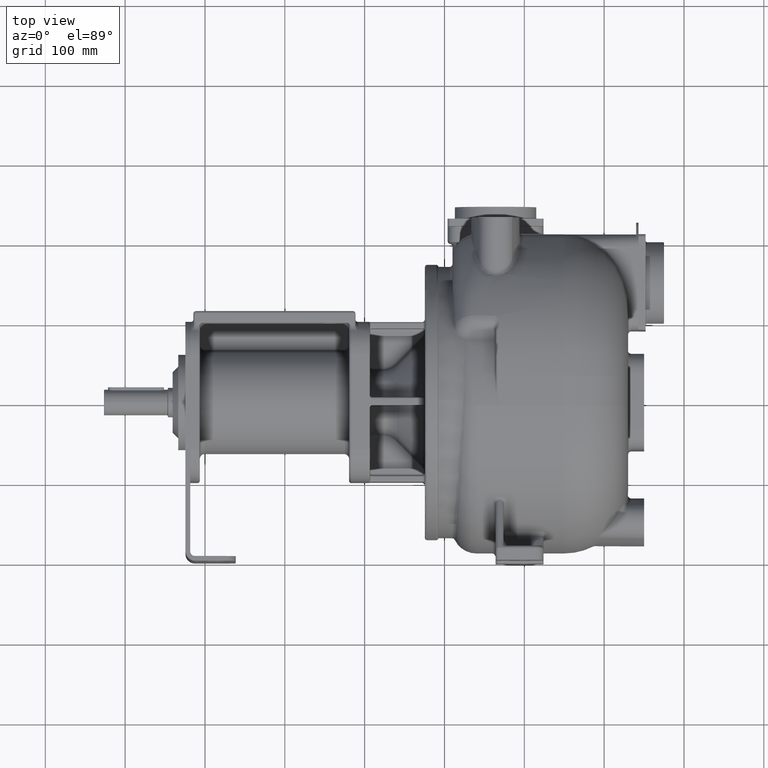
[diagram: clean part render]
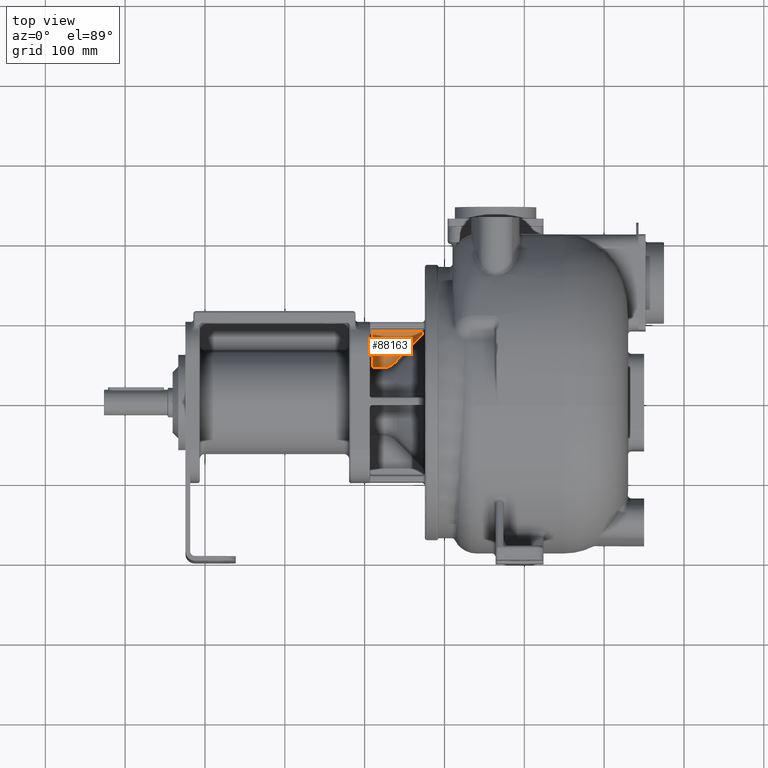
[diagram: same view with one face highlighted and labeled with its STEP entity id]
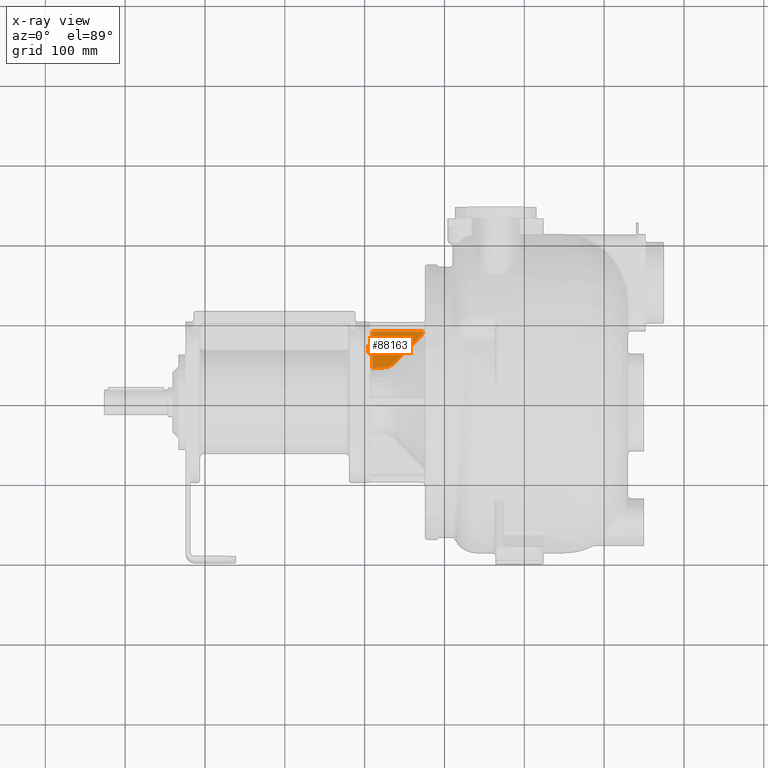
[diagram: x-ray of the same camera — body ghosted, the highlighted face saturated]
A machine part, top view. The second image highlights one B-rep face of the part: STEP entity #88163.
The next image is the same camera in x-ray: the body ghosted, the highlighted face saturated — about 0% of this face is hidden behind the body in this view.
In plain terms, the highlighted planar face has unit normal (0, 0, 1).
Its self-contained STEP definition (entity closure, byte-faithful):
#29629=DIRECTION('',(0.E0,-1.E0,1.942568140263E-10));
#29630=VECTOR('',#29629,9.172528907366E0);
#29631=CARTESIAN_POINT('',(-1.955E2,2.708166663789E2,1.000000710442E1));
#29632=LINE('',#29631,#29630);
#32464=CARTESIAN_POINT('',(-1.905E2,2.758946638440E2,1.000000372372E1));
#32465=CARTESIAN_POINT('',(-1.904999995396E2,2.758226602936E2,
1.000000356183E1));
#32466=CARTESIAN_POINT('',(-1.905030271808E2,2.756786217992E2,
9.999998346948E0));
#32467=CARTESIAN_POINT('',(-1.905166631118E2,2.754622158651E2,
1.000000044293E1));
#32468=CARTESIAN_POINT('',(-1.905394666655E2,2.752462237698E2,
9.999999881316E0));
#32469=CARTESIAN_POINT('',(-1.905713996205E2,2.750311145598E2,
1.000000003180E1));
#32470=CARTESIAN_POINT('',(-1.906124175422E2,2.748174372304E2,
9.999999991479E0));
#32471=CARTESIAN_POINT('',(-1.906624379659E2,2.746057133156E2,
1.000000000228E1));
#32472=CARTESIAN_POINT('',(-1.907213084479E2,2.743964803736E2,
9.999999999388E0));
#32473=CARTESIAN_POINT('',(-1.907888732584E2,2.741901955809E2,
1.000000000016E1));
#32474=CARTESIAN_POINT('',(-1.908650243962E2,2.739871689097E2,
9.999999999956E0));
#32475=CARTESIAN_POINT('',(-1.909496137948E2,2.737877230395E2,
1.000000000001E1));
#32476=CARTESIAN_POINT('',(-1.910424897560E2,2.735921630020E2,
9.999999999997E0));
#32477=CARTESIAN_POINT('',(-1.911434711852E2,2.734008757933E2,1.E1));
#32478=CARTESIAN_POINT('',(-1.912523507550E2,2.732142410651E2,1.E1));
#32479=CARTESIAN_POINT('',(-1.913688779065E2,2.730326188770E2,1.E1));
#32480=CARTESIAN_POINT('',(-1.914928156448E2,2.728563419523E2,1.E1));
#32481=CARTESIAN_POINT('',(-1.916239376171E2,2.726857233609E2,1.E1));
#32482=CARTESIAN_POINT('',(-1.917619765340E2,2.725210526408E2,1.E1));
#32483=CARTESIAN_POINT('',(-1.919066612420E2,2.723626099845E2,1.E1));
#32484=CARTESIAN_POINT('',(-1.920577190622E2,2.722106827364E2,1.E1));
#32485=CARTESIAN_POINT('',(-1.922148542640E2,2.720655351164E2,1.E1));
#32486=CARTESIAN_POINT('',(-1.923777484084E2,2.719274088593E2,1.E1));
#32487=CARTESIAN_POINT('',(-1.925461067287E2,2.717965310880E2,1.E1));
#32488=CARTESIAN_POINT('',(-1.927196327786E2,2.716731208889E2,1.E1));
#32489=CARTESIAN_POINT('',(-1.928980049372E2,2.715573603381E2,1.E1));
#32490=CARTESIAN_POINT('',(-1.930808913153E2,2.714494401131E2,1.E1));
#32491=CARTESIAN_POINT('',(-1.932679394195E2,2.713495633691E2,
9.999999999994E0));
#32492=CARTESIAN_POINT('',(-1.934587776142E2,2.712578919456E2,
1.000000000002E1));
#32493=CARTESIAN_POINT('',(-1.936530290731E2,2.711745631447E2,
9.999999999915E0));
#32494=CARTESIAN_POINT('',(-1.938504351802E2,2.710996739279E2,
1.000000000032E1));
#32495=CARTESIAN_POINT('',(-1.940507249019E2,2.710333243857E2,
9.999999998822E0));
#32496=CARTESIAN_POINT('',(-1.942536459273E2,2.709755807131E2,
1.000000000440E1));
#32497=CARTESIAN_POINT('',(-1.944587853355E2,2.709265695143E2,
9.999999983590E0));
#32498=CARTESIAN_POINT('',(-1.946656315425E2,2.708864217107E2,
1.000000006124E1));
#32499=CARTESIAN_POINT('',(-1.948736928760E2,2.708551976559E2,
9.999999771435E0));
#32500=CARTESIAN_POINT('',(-1.950824521819E2,2.708329226610E2,
1.000000085301E1));
#32501=CARTESIAN_POINT('',(-1.952914703505E2,2.708196135040E2,
9.999996816506E0));
#32502=CARTESIAN_POINT('',(-1.954305140558E2,2.708166660245E2,
1.000000685948E1));
#32503=CARTESIAN_POINT('',(-1.955E2,2.708166663789E2,1.000000710442E1));
#32505=DIRECTION('',(-1.075681517031E-12,-1.E0,2.841373870683E-7));
#32506=VECTOR('',#32505,1.310533615599E1);
#32507=CARTESIAN_POINT('',(-1.905E2,2.89E2,1.E1));
#32508=LINE('',#32507,#32506);
#32509=DIRECTION('',(-1.E0,0.E0,0.E0));
#32510=VECTOR('',#32509,6.3E1);
#32511=CARTESIAN_POINT('',(-1.275E2,2.89E2,1.E1));
#32512=LINE('',#32511,#32510);
#32513=DIRECTION('',(0.E0,1.E0,-2.382242948502E-13));
#32514=VECTOR('',#32513,9.991920287948E-1);
#32515=CARTESIAN_POINT('',(-1.275E2,2.880008079712E2,1.E1));
#32516=LINE('',#32515,#32514);
#32517=CARTESIAN_POINT('',(-1.295502525317E2,2.829941219311E2,
9.999999999871E0));
#32518=CARTESIAN_POINT('',(-1.294859925801E2,2.830591687059E2,
9.999999999871E0));
#32519=CARTESIAN_POINT('',(-1.293599386648E2,2.831918296769E2,
1.000000000006E1));
#32520=CARTESIAN_POINT('',(-1.291780984419E2,2.833987430531E2,
9.999999999984E0));
#32521=CARTESIAN_POINT('',(-1.290041009070E2,2.836130479136E2,1.E1));
#32522=CARTESIAN_POINT('',(-1.288383062486E2,2.838343870915E2,
9.999999999999E0));
#32523=CARTESIAN_POINT('',(-1.286810641636E2,2.840623318032E2,1.E1));
#32524=CARTESIAN_POINT('',(-1.285327135853E2,2.842964460847E2,1.E1));
#32525=CARTESIAN_POINT('',(-1.283935342561E2,2.845363056429E2,1.E1));
#32526=CARTESIAN_POINT('',(-1.282637082031E2,2.847815848979E2,1.E1));
#32527=CARTESIAN_POINT('',(-1.281434415490E2,2.850319575353E2,1.E1));
#32528=CARTESIAN_POINT('',(-1.280329378460E2,2.852870485066E2,1.E1));
#32529=CARTESIAN_POINT('',(-1.279323930839E2,2.855464077659E2,1.E1));
#32530=CARTESIAN_POINT('',(-1.278420040951E2,2.858095843739E2,1.E1));
#32531=CARTESIAN_POINT('',(-1.277619133348E2,2.860761705015E2,1.E1));
#32532=CARTESIAN_POINT('',(-1.276922250189E2,2.863457889581E2,1.E1));
#32533=CARTESIAN_POINT('',(-1.276330598358E2,2.866180767696E2,1.E1));
#32534=CARTESIAN_POINT('',(-1.275845390220E2,2.868925341053E2,1.E1));
#32535=CARTESIAN_POINT('',(-1.275467486332E2,2.871686074355E2,1.E1));
#32536=CARTESIAN_POINT('',(-1.275197612252E2,2.874457375432E2,1.E1));
#32537=CARTESIAN_POINT('',(-1.275035928998E2,2.877234102219E2,1.E1));
#32538=CARTESIAN_POINT('',(-1.275000022816E2,2.879083422977E2,1.E1));
#32539=CARTESIAN_POINT('',(-1.275E2,2.880008079712E2,1.E1));
#32541=CARTESIAN_POINT('',(-1.616126983722E2,2.502905842069E2,
9.999999999239E0));
#32542=CARTESIAN_POINT('',(-1.587167874471E2,2.532816865019E2,
9.999999925695E0));
#32543=CARTESIAN_POINT('',(-1.524798060487E2,2.596900732222E2,
1.000000003317E1));
#32544=CARTESIAN_POINT('',(-1.418541726116E2,2.705240539342E2,
9.999999995365E0));
#32545=CARTESIAN_POINT('',(-1.338053114116E2,2.786871801047E2,
9.999999988702E0));
#32546=CARTESIAN_POINT('',(-1.295502525317E2,2.829941219311E2,
9.999999999871E0));
#32548=CARTESIAN_POINT('',(-1.771690475583E2,2.436033255612E2,1.E1));
#32549=CARTESIAN_POINT('',(-1.769597411366E2,2.436033278719E2,1.E1));
#32550=CARTESIAN_POINT('',(-1.765409749929E2,2.436095683433E2,1.E1));
#32551=CARTESIAN_POINT('',(-1.759120581962E2,2.436376935271E2,1.E1));
#32552=CARTESIAN_POINT('',(-1.752832968583E2,2.436846508106E2,1.E1));
#32553=CARTESIAN_POINT('',(-1.746552888078E2,2.437504885993E2,1.E1));
#32554=CARTESIAN_POINT('',(-1.740286724101E2,2.438351771413E2,1.E1));
#32555=CARTESIAN_POINT('',(-1.734040682929E2,2.439386840179E2,1.E1));
#32556=CARTESIAN_POINT('',(-1.727821096197E2,2.440609566793E2,1.E1));
#32557=CARTESIAN_POINT('',(-1.721631605338E2,2.442019372470E2,1.E1));
#32558=CARTESIAN_POINT('',(-1.715475904965E2,2.443615964558E2,1.E1));
#32559=CARTESIAN_POINT('',(-1.709357776276E2,2.445399257952E2,1.E1));
#32560=CARTESIAN_POINT('',(-1.703282299969E2,2.447368299295E2,1.E1));
#32561=CARTESIAN_POINT('',(-1.697254688085E2,2.449522136556E2,1.E1));
#32562=CARTESIAN_POINT('',(-1.691280240849E2,2.451859840172E2,1.E1));
#32563=CARTESIAN_POINT('',(-1.685363696198E2,2.454380146054E2,1.E1));
#32564=CARTESIAN_POINT('',(-1.679509877200E2,2.457081823676E2,1.E1));
#32565=CARTESIAN_POINT('',(-1.673723717623E2,2.459963728307E2,1.E1));
#32566=CARTESIAN_POINT('',(-1.668010679935E2,2.463023916798E2,1.E1));
#32567=CARTESIAN_POINT('',(-1.662376289929E2,2.466260327458E2,1.E1));
#32568=CARTESIAN_POINT('',(-1.656826170713E2,2.469670866575E2,1.E1));
#32569=CARTESIAN_POINT('',(-1.651365261178E2,2.473253269761E2,1.E1));
#32570=CARTESIAN_POINT('',(-1.645998539271E2,2.477005206154E2,1.E1));
#32571=CARTESIAN_POINT('',(-1.640731089659E2,2.480924399090E2,1.E1));
#32572=CARTESIAN_POINT('',(-1.635569351629E2,2.485006992081E2,
9.999999999993E0));
#32573=CARTESIAN_POINT('',(-1.630519606011E2,2.489248846091E2,
1.000000000003E1));
#32574=CARTESIAN_POINT('',(-1.625588247627E2,2.493645467739E2,
9.999999999905E0));
#32575=CARTESIAN_POINT('',(-1.620780781783E2,2.498192302421E2,
1.000000000035E1));
#32576=CARTESIAN_POINT('',(-1.617663834758E2,2.501318502001E2,
9.999999999239E0));
#32577=CARTESIAN_POINT('',(-1.616126983722E2,2.502905842069E2,
9.999999999239E0));
#32579=DIRECTION('',(1.E0,0.E0,-1.368539052770E-14));
#32580=VECTOR('',#32579,1.233095244169E1);
#32581=CARTESIAN_POINT('',(-1.895E2,2.436033255612E2,1.E1));
#32582=LINE('',#32581,#32580);
#32583=CARTESIAN_POINT('',(-1.905E2,2.446458284725E2,1.E1));
#32584=CARTESIAN_POINT('',(-1.904999988645E2,2.446235346091E2,1.E1));
#32585=CARTESIAN_POINT('',(-1.904986253719E2,2.445790021835E2,1.E1));
#32586=CARTESIAN_POINT('',(-1.904924362019E2,2.445121923305E2,1.E1));
#32587=CARTESIAN_POINT('',(-1.904821144466E2,2.444459026209E2,1.E1));
#32588=CARTESIAN_POINT('',(-1.904677246531E2,2.443804466622E2,1.E1));
#32589=CARTESIAN_POINT('',(-1.904493495006E2,2.443161981818E2,1.E1));
#32590=CARTESIAN_POINT('',(-1.904271116439E2,2.442534447274E2,1.E1));
#32591=CARTESIAN_POINT('',(-1.904011148970E2,2.441924261723E2,1.E1));
#32592=CARTESIAN_POINT('',(-1.903714946775E2,2.441333883641E2,1.E1));
#32593=CARTESIAN_POINT('',(-1.903384159234E2,2.440765866547E2,1.E1));
#32594=CARTESIAN_POINT('',(-1.903020500635E2,2.440222591963E2,1.E1));
#32595=CARTESIAN_POINT('',(-1.902625867660E2,2.439705994995E2,1.E1));
#32596=CARTESIAN_POINT('',(-1.902202060215E2,2.439218005033E2,1.E1));
#32597=CARTESIAN_POINT('',(-1.901751164447E2,2.438760258874E2,1.E1));
#32598=CARTESIAN_POINT('',(-1.901275237782E2,2.438334358335E2,1.E1));
#32599=CARTESIAN_POINT('',(-1.900776363837E2,2.437941623567E2,1.E1));
#32600=CARTESIAN_POINT('',(-1.900256624891E2,2.437583128801E2,1.E1));
#32601=CARTESIAN_POINT('',(-1.899718084202E2,2.437260006578E2,1.E1));
#32602=CARTESIAN_POINT('',(-1.899163153242E2,2.436973145612E2,1.E1));
#32603=CARTESIAN_POINT('',(-1.898594123133E2,2.436723428968E2,1.E1));
#32604=CARTESIAN_POINT('',(-1.898012762629E2,2.436511192808E2,1.E1));
#32605=CARTESIAN_POINT('',(-1.897420575185E2,2.436336778448E2,1.E1));
#32606=CARTESIAN_POINT('',(-1.896820051064E2,2.436200897943E2,1.E1));
#32607=CARTESIAN_POINT('',(-1.896214396381E2,2.436103909424E2,1.E1));
#32608=CARTESIAN_POINT('',(-1.895606239455E2,2.436046047331E2,1.E1));
#32609=CARTESIAN_POINT('',(-1.895202035398E2,2.436033267313E2,1.E1));
#32610=CARTESIAN_POINT('',(-1.895E2,2.436033255612E2,1.E1));
#32612=DIRECTION('',(9.666513553010E-13,-1.E0,-2.698129519529E-7));
#32613=VECTOR('',#32612,1.187850257170E1);
#32614=CARTESIAN_POINT('',(-1.905E2,2.565243310442E2,1.000000320497E1));
#32615=LINE('',#32614,#32613);
#32616=CARTESIAN_POINT('',(-1.955E2,2.616441374716E2,1.000000710621E1));
#32617=CARTESIAN_POINT('',(-1.954307263775E2,2.616441383010E2,
1.000000661811E1));
#32618=CARTESIAN_POINT('',(-1.952921036430E2,2.616411921102E2,
9.999996928525E0));
#32619=CARTESIAN_POINT('',(-1.950837082055E2,2.616278968963E2,
1.000000082300E1));
#32620=CARTESIAN_POINT('',(-1.948755560295E2,2.616056339605E2,
9.999999779478E0));
#32621=CARTESIAN_POINT('',(-1.946680828230E2,2.615744318655E2,
1.000000005909E1));
#32622=CARTESIAN_POINT('',(-1.944618038435E2,2.615343045039E2,
9.999999984167E0));
#32623=CARTESIAN_POINT('',(-1.942572108267E2,2.614853053719E2,
1.000000000424E1));
#32624=CARTESIAN_POINT('',(-1.940548101549E2,2.614275764233E2,
9.999999998863E0));
#32625=CARTESIAN_POINT('',(-1.938550121001E2,2.613612389952E2,
1.000000000030E1));
#32626=CARTESIAN_POINT('',(-1.936580705732E2,2.612863414713E2,
9.999999999918E0));
#32627=CARTESIAN_POINT('',(-1.934642492523E2,2.612029904071E2,
1.000000000002E1));
#32628=CARTESIAN_POINT('',(-1.932738013682E2,2.611112824232E2,
9.999999999994E0));
#32629=CARTESIAN_POINT('',(-1.930871012709E2,2.610113384502E2,1.E1));
#32630=CARTESIAN_POINT('',(-1.929045150388E2,2.609033117162E2,1.E1));
#32631=CARTESIAN_POINT('',(-1.927263839989E2,2.607874047459E2,1.E1));
#32632=CARTESIAN_POINT('',(-1.925530374425E2,2.606637951874E2,1.E1));
#32633=CARTESIAN_POINT('',(-1.923847999284E2,2.605326477059E2,1.E1));
#32634=CARTESIAN_POINT('',(-1.922219586833E2,2.603941782366E2,1.E1));
#32635=CARTESIAN_POINT('',(-1.920648055213E2,2.602486027135E2,1.E1));
#32636=CARTESIAN_POINT('',(-1.919136626025E2,2.600961430821E2,1.E1));
#32637=CARTESIAN_POINT('',(-1.917688216896E2,2.599370516843E2,1.E1));
#32638=CARTESIAN_POINT('',(-1.916305517567E2,2.597716031586E2,1.E1));
#32639=CARTESIAN_POINT('',(-1.914991312847E2,2.596000615852E2,1.E1));
#32640=CARTESIAN_POINT('',(-1.913748348426E2,2.594227029796E2,1.E1));
#32641=CARTESIAN_POINT('',(-1.912578891634E2,2.592398301829E2,1.E1));
#32642=CARTESIAN_POINT('',(-1.911485392398E2,2.590517621939E2,1.E1));
#32643=CARTESIAN_POINT('',(-1.910470488038E2,2.588588454394E2,
9.999999999997E0));
#32644=CARTESIAN_POINT('',(-1.909536302141E2,2.586614484116E2,
1.000000000001E1));
#32645=CARTESIAN_POINT('',(-1.908684754316E2,2.584599467648E2,
9.999999999960E0));
#32646=CARTESIAN_POINT('',(-1.907917557090E2,2.582546443022E2,
1.000000000015E1));
#32647=CARTESIAN_POINT('',(-1.907236331382E2,2.580458648872E2,
9.999999999448E0));
#32648=CARTESIAN_POINT('',(-1.906642293242E2,2.578339185412E2,
1.000000000206E1));
#32649=CARTESIAN_POINT('',(-1.906137167176E2,2.576192642980E2,
9.999999992318E0));
#32650=CARTESIAN_POINT('',(-1.905722637424E2,2.574024462363E2,
1.000000002867E1));
#32651=CARTESIAN_POINT('',(-1.905399660461E2,2.571839903623E2,
9.999999892997E0));
#32652=CARTESIAN_POINT('',(-1.905168842909E2,2.569644529252E2,
1.000000039934E1));
#32653=CARTESIAN_POINT('',(-1.905030705850E2,2.567443116332E2,
9.999998509636E0));
#32654=CARTESIAN_POINT('',(-1.904999998180E2,2.565976673222E2,
1.000000321129E1));
#32655=CARTESIAN_POINT('',(-1.905E2,2.565243310442E2,1.000000320497E1));
#41378=CARTESIAN_POINT('',(-1.955E2,2.708166663789E2,1.000000710442E1));
#41379=CARTESIAN_POINT('',(-1.955E2,2.616441374716E2,1.000000710621E1));
#41380=VERTEX_POINT('',#41378);
#41381=VERTEX_POINT('',#41379);
#41487=CARTESIAN_POINT('',(-1.905E2,2.565243310442E2,1.000000320497E1));
#41488=CARTESIAN_POINT('',(-1.905E2,2.446458284725E2,1.E1));
#41489=VERTEX_POINT('',#41487);
#41490=VERTEX_POINT('',#41488);
#41496=CARTESIAN_POINT('',(-1.895E2,2.436033255612E2,1.E1));
#41497=CARTESIAN_POINT('',(-1.771690475583E2,2.436033255612E2,1.E1));
#41498=VERTEX_POINT('',#41496);
#41499=VERTEX_POINT('',#41497);
#41501=VERTEX_POINT('',#32577);
#41503=VERTEX_POINT('',#32546);
#41505=VERTEX_POINT('',#32539);
#41510=CARTESIAN_POINT('',(-1.275E2,2.89E2,1.E1));
#41511=CARTESIAN_POINT('',(-1.905E2,2.89E2,1.E1));
#41512=VERTEX_POINT('',#41510);
#41513=VERTEX_POINT('',#41511);
#41516=CARTESIAN_POINT('',(-1.905E2,2.758946638440E2,1.000000372372E1));
#41517=VERTEX_POINT('',#41516);
#88136=CARTESIAN_POINT('',(-1.955E2,2.92E2,1.E1));
#88137=DIRECTION('',(0.E0,0.E0,1.E0));
#88138=DIRECTION('',(0.E0,-1.E0,0.E0));
#88139=AXIS2_PLACEMENT_3D('',#88136,#88137,#88138);
#88140=PLANE('',#88139);
#88141=ORIENTED_EDGE('',*,*,#84568,.F.);
#88143=ORIENTED_EDGE('',*,*,#88142,.F.);
#88145=ORIENTED_EDGE('',*,*,#88144,.F.);
#88146=ORIENTED_EDGE('',*,*,#88129,.F.);
#88147=ORIENTED_EDGE('',*,*,#77161,.F.);
#88148=ORIENTED_EDGE('',*,*,#77213,.F.);
#88150=ORIENTED_EDGE('',*,*,#88149,.F.);
#88152=ORIENTED_EDGE('',*,*,#88151,.F.);
#88154=ORIENTED_EDGE('',*,*,#88153,.F.);
#88156=ORIENTED_EDGE('',*,*,#88155,.F.);
#88158=ORIENTED_EDGE('',*,*,#88157,.F.);
#88160=ORIENTED_EDGE('',*,*,#88159,.F.);
#88161=EDGE_LOOP('',(#88141,#88143,#88145,#88146,#88147,#88148,#88150,#88152,
#88154,#88156,#88158,#88160));
#88162=FACE_OUTER_BOUND('',#88161,.F.);
#88163=ADVANCED_FACE('',(#88162),#88140,.T.);
#32504=B_SPLINE_CURVE_WITH_KNOTS('',3,(#32464,#32465,#32466,#32467,#32468,
#32469,#32470,#32471,#32472,#32473,#32474,#32475,#32476,#32477,#32478,#32479,
#32480,#32481,#32482,#32483,#32484,#32485,#32486,#32487,#32488,#32489,#32490,
#32491,#32492,#32493,#32494,#32495,#32496,#32497,#32498,#32499,#32500,#32501,
#32502,#32503),.UNSPECIFIED.,.F.,.F.,(4,1,1,1,1,1,1,1,1,1,1,1,1,1,1,1,1,1,1,1,1,
1,1,1,1,1,1,1,1,1,1,1,1,1,1,1,1,4),(0.E0,2.702702702703E-2,5.405405405405E-2,
8.108108108108E-2,1.081081081081E-1,1.351351351351E-1,1.621621621622E-1,
1.891891891892E-1,2.162162162162E-1,2.432432432432E-1,2.702702702703E-1,
2.972972972973E-1,3.243243243243E-1,3.513513513514E-1,3.783783783784E-1,
4.054054054054E-1,4.324324324324E-1,4.594594594595E-1,4.864864864865E-1,
5.135135135135E-1,5.405405405405E-1,5.675675675676E-1,5.945945945946E-1,
6.216216216216E-1,6.486486486486E-1,6.756756756757E-1,7.027027027027E-1,
7.297297297297E-1,7.567567567568E-1,7.837837837838E-1,8.108108108108E-1,
8.378378378378E-1,8.648648648649E-1,8.918918918919E-1,9.189189189189E-1,
9.459459459459E-1,9.729729729730E-1,1.E0),.UNSPECIFIED.);
#32540=B_SPLINE_CURVE_WITH_KNOTS('',3,(#32517,#32518,#32519,#32520,#32521,
#32522,#32523,#32524,#32525,#32526,#32527,#32528,#32529,#32530,#32531,#32532,
#32533,#32534,#32535,#32536,#32537,#32538,#32539),.UNSPECIFIED.,.F.,.F.,(4,1,1,
1,1,1,1,1,1,1,1,1,1,1,1,1,1,1,1,1,4),(0.E0,5.E-2,1.E-1,1.5E-1,2.E-1,2.5E-1,
3.E-1,3.5E-1,4.E-1,4.5E-1,5.E-1,5.5E-1,6.E-1,6.5E-1,7.E-1,7.5E-1,8.E-1,8.5E-1,
9.E-1,9.5E-1,1.E0),.UNSPECIFIED.);
#32547=B_SPLINE_CURVE_WITH_KNOTS('',3,(#32541,#32542,#32543,#32544,#32545,
#32546),.UNSPECIFIED.,.F.,.F.,(4,1,1,4),(0.E0,3.333333333333E-1,
6.666666666667E-1,1.E0),.UNSPECIFIED.);
#32578=B_SPLINE_CURVE_WITH_KNOTS('',3,(#32548,#32549,#32550,#32551,#32552,
#32553,#32554,#32555,#32556,#32557,#32558,#32559,#32560,#32561,#32562,#32563,
#32564,#32565,#32566,#32567,#32568,#32569,#32570,#32571,#32572,#32573,#32574,
#32575,#32576,#32577),.UNSPECIFIED.,.F.,.F.,(4,1,1,1,1,1,1,1,1,1,1,1,1,1,1,1,1,
1,1,1,1,1,1,1,1,1,1,4),(0.E0,3.703703703704E-2,7.407407407407E-2,
1.111111111111E-1,1.481481481481E-1,1.851851851852E-1,2.222222222222E-1,
2.592592592593E-1,2.962962962963E-1,3.333333333333E-1,3.703703703704E-1,
4.074074074074E-1,4.444444444444E-1,4.814814814815E-1,5.185185185185E-1,
5.555555555556E-1,5.925925925926E-1,6.296296296296E-1,6.666666666667E-1,
7.037037037037E-1,7.407407407407E-1,7.777777777778E-1,8.148148148148E-1,
8.518518518519E-1,8.888888888889E-1,9.259259259259E-1,9.629629629630E-1,1.E0),
.UNSPECIFIED.);
#32611=B_SPLINE_CURVE_WITH_KNOTS('',3,(#32583,#32584,#32585,#32586,#32587,
#32588,#32589,#32590,#32591,#32592,#32593,#32594,#32595,#32596,#32597,#32598,
#32599,#32600,#32601,#32602,#32603,#32604,#32605,#32606,#32607,#32608,#32609,
#32610),.UNSPECIFIED.,.F.,.F.,(4,1,1,1,1,1,1,1,1,1,1,1,1,1,1,1,1,1,1,1,1,1,1,1,
1,4),(0.E0,4.E-2,8.E-2,1.2E-1,1.6E-1,2.E-1,2.4E-1,2.8E-1,3.2E-1,3.6E-1,4.E-1,
4.4E-1,4.8E-1,5.2E-1,5.6E-1,6.E-1,6.4E-1,6.8E-1,7.2E-1,7.6E-1,8.E-1,8.4E-1,
8.8E-1,9.2E-1,9.6E-1,1.E0),.UNSPECIFIED.);
#32656=B_SPLINE_CURVE_WITH_KNOTS('',3,(#32616,#32617,#32618,#32619,#32620,
#32621,#32622,#32623,#32624,#32625,#32626,#32627,#32628,#32629,#32630,#32631,
#32632,#32633,#32634,#32635,#32636,#32637,#32638,#32639,#32640,#32641,#32642,
#32643,#32644,#32645,#32646,#32647,#32648,#32649,#32650,#32651,#32652,#32653,
#32654,#32655),.UNSPECIFIED.,.F.,.F.,(4,1,1,1,1,1,1,1,1,1,1,1,1,1,1,1,1,1,1,1,1,
1,1,1,1,1,1,1,1,1,1,1,1,1,1,1,1,4),(0.E0,2.702702702703E-2,5.405405405405E-2,
8.108108108108E-2,1.081081081081E-1,1.351351351351E-1,1.621621621622E-1,
1.891891891892E-1,2.162162162162E-1,2.432432432432E-1,2.702702702703E-1,
2.972972972973E-1,3.243243243243E-1,3.513513513514E-1,3.783783783784E-1,
4.054054054054E-1,4.324324324324E-1,4.594594594595E-1,4.864864864865E-1,
5.135135135135E-1,5.405405405405E-1,5.675675675676E-1,5.945945945946E-1,
6.216216216216E-1,6.486486486486E-1,6.756756756757E-1,7.027027027027E-1,
7.297297297297E-1,7.567567567568E-1,7.837837837838E-1,8.108108108108E-1,
8.378378378378E-1,8.648648648649E-1,8.918918918919E-1,9.189189189189E-1,
9.459459459459E-1,9.729729729730E-1,1.E0),.UNSPECIFIED.);
#77161=EDGE_CURVE('',#41505,#41512,#32516,.T.);
#77213=EDGE_CURVE('',#41503,#41505,#32540,.T.);
#84568=EDGE_CURVE('',#41380,#41381,#29632,.T.);
#88129=EDGE_CURVE('',#41512,#41513,#32512,.T.);
#88142=EDGE_CURVE('',#41517,#41380,#32504,.T.);
#88144=EDGE_CURVE('',#41513,#41517,#32508,.T.);
#88149=EDGE_CURVE('',#41501,#41503,#32547,.T.);
#88151=EDGE_CURVE('',#41499,#41501,#32578,.T.);
#88153=EDGE_CURVE('',#41498,#41499,#32582,.T.);
#88155=EDGE_CURVE('',#41490,#41498,#32611,.T.);
#88157=EDGE_CURVE('',#41489,#41490,#32615,.T.);
#88159=EDGE_CURVE('',#41381,#41489,#32656,.T.);